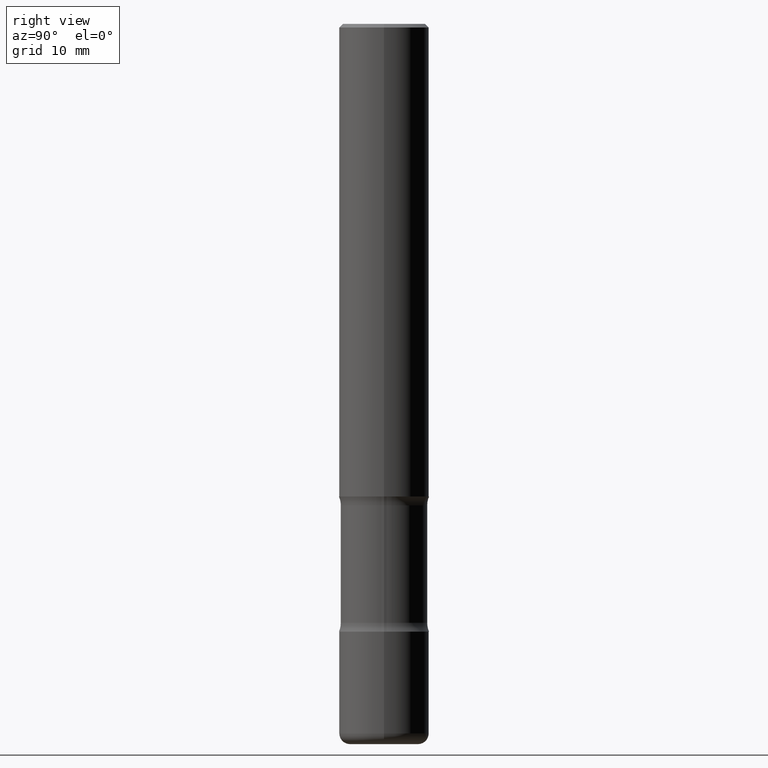
[diagram: clean part render]
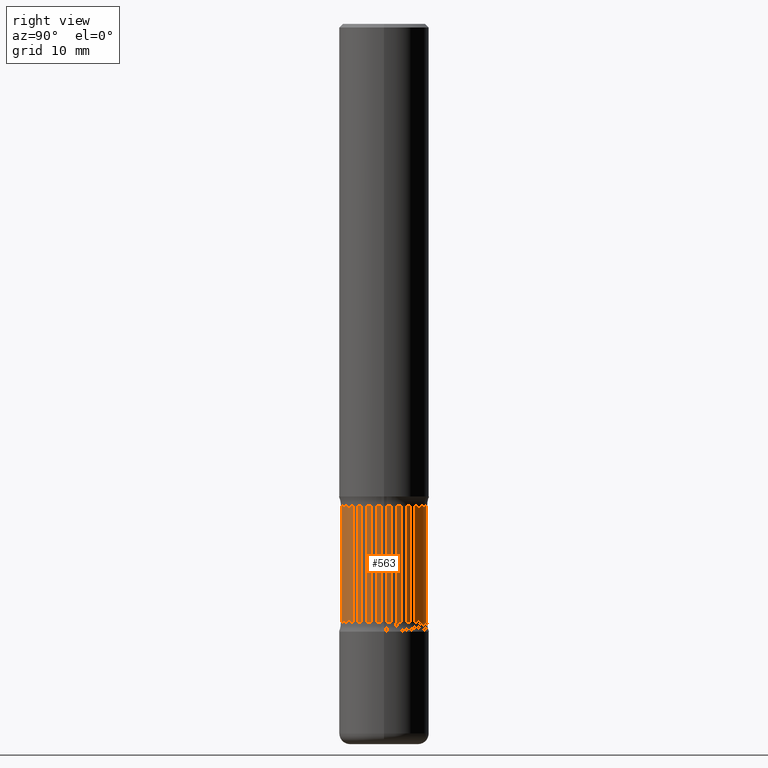
[diagram: same view with one face highlighted and labeled with its STEP entity id]
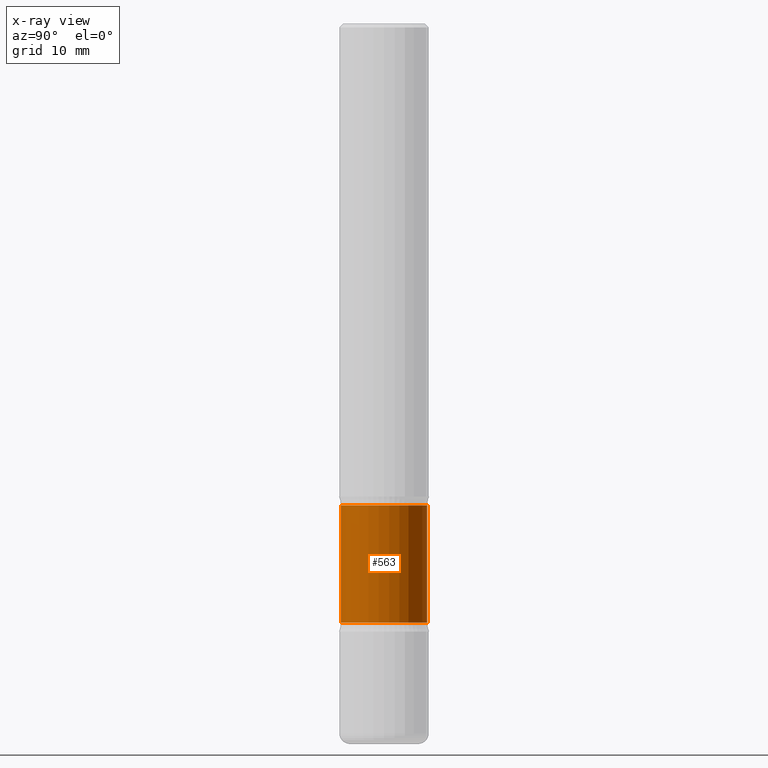
[diagram: x-ray of the same camera — body ghosted, the highlighted face saturated]
A machine part, right view. The second image highlights one B-rep face of the part: STEP entity #563.
The next image is the same camera in x-ray: the body ghosted, the highlighted face saturated — about 0% of this face is hidden behind the body in this view.
In plain terms, the highlighted cylindrical surface (partial cylindrical patch) has radius 6.096 mm, axis along (0, -0, -1).
Its self-contained STEP definition (entity closure, byte-faithful):
#8 = VERTEX_POINT ( 'NONE', #637 ) ;
#9 = CARTESIAN_POINT ( 'NONE',  ( 6.540663232779384843E-29, -9.334030794150637201E-15, -2.673989794855663682 ) ) ;
#12 = ORIENTED_EDGE ( 'NONE', *, *, #427, .T. ) ;
#57 = EDGE_LOOP ( 'NONE', ( #666, #12, #317, #520 ) ) ;
#117 = AXIS2_PLACEMENT_3D ( 'NONE', #123, #247, #634 ) ;
#123 = CARTESIAN_POINT ( 'NONE',  ( 9.766455520912181389E-29, -1.394771102909594036E-14, -3.994238073033861802 ) ) ;
#138 = CARTESIAN_POINT ( 'NONE',  ( 1.675911042644801198E-15, 0.2399999999999860023, -3.994238073033863134 ) ) ;
#148 = VERTEX_POINT ( 'NONE', #541 ) ;
#155 = CARTESIAN_POINT ( 'NONE',  ( 1.675911042644784829E-15, 0.2399999999999883615, -3.326010205144337206 ) ) ;
#174 = DIRECTION ( 'NONE',  ( 2.443322473091232126E-29, -3.494555009995310460E-15, -1.000000000000000000 ) ) ;
#178 = DIRECTION ( 'NONE',  ( 6.982962677686265922E-15, 1.000000000000000000, -4.553079989440440670E-15 ) ) ;
#195 = FACE_OUTER_BOUND ( 'NONE', #57, .T. ) ;
#199 = VECTOR ( 'NONE', #174, 39.37007874015748143 ) ;
#247 = DIRECTION ( 'NONE',  ( 2.443322473091231846E-29, -3.494555009995310460E-15, -1.000000000000000000 ) ) ;
#254 = CIRCLE ( 'NONE', #406, 0.2399999999999999634 ) ;
#301 = LINE ( 'NONE', #735, #199 ) ;
#308 = VECTOR ( 'NONE', #707, 39.37007874015748143 ) ;
#317 = ORIENTED_EDGE ( 'NONE', *, *, #639, .F. ) ;
#330 = CARTESIAN_POINT ( 'NONE',  ( -1.680822009453943183E-15, -0.2400000000000115652, -3.326010205144334986 ) ) ;
#406 = AXIS2_PLACEMENT_3D ( 'NONE', #752, #407, #647 ) ;
#407 = DIRECTION ( 'NONE',  ( 2.443322473091231846E-29, -3.494555009995310460E-15, -1.000000000000000000 ) ) ;
#410 = VERTEX_POINT ( 'NONE', #155 ) ;
#427 = EDGE_CURVE ( 'NONE', #148, #792, #301, .T. ) ;
#494 = EDGE_CURVE ( 'NONE', #8, #148, #612, .T. ) ;
#520 = ORIENTED_EDGE ( 'NONE', *, *, #805, .F. ) ;
#541 = CARTESIAN_POINT ( 'NONE',  ( -1.680822009453959749E-15, -0.2400000000000092337, -2.673989794855662794 ) ) ;
#563 = ADVANCED_FACE ( 'NONE', ( #195 ), #746, .T. ) ;
#572 = AXIS2_PLACEMENT_3D ( 'NONE', #9, #628, #178 ) ;
#612 = CIRCLE ( 'NONE', #572, 0.2399999999999999079 ) ;
#628 = DIRECTION ( 'NONE',  ( 2.443322473091231846E-29, -3.494555009995310460E-15, -1.000000000000000000 ) ) ;
#634 = DIRECTION ( 'NONE',  ( 6.982962677686265922E-15, 1.000000000000000000, -4.553079989440439881E-15 ) ) ;
#637 = CARTESIAN_POINT ( 'NONE',  ( 1.675911042644768658E-15, 0.2399999999999905820, -2.673989794855665014 ) ) ;
#639 = EDGE_CURVE ( 'NONE', #410, #792, #254, .T. ) ;
#647 = DIRECTION ( 'NONE',  ( 6.982962677686265922E-15, 1.000000000000000000, -4.553079989440439092E-15 ) ) ;
#666 = ORIENTED_EDGE ( 'NONE', *, *, #494, .T. ) ;
#704 = LINE ( 'NONE', #138, #308 ) ;
#707 = DIRECTION ( 'NONE',  ( 2.443322473091232126E-29, -3.494555009995310460E-15, -1.000000000000000000 ) ) ;
#735 = CARTESIAN_POINT ( 'NONE',  ( -1.646519519465069149E-15, -0.2400000000000138689, -3.994238073033860914 ) ) ;
#746 = CYLINDRICAL_SURFACE ( 'NONE', #117, 0.2399999999999999356 ) ;
#752 = CARTESIAN_POINT ( 'NONE',  ( 8.133759354151864072E-29, -1.161255198554411461E-14, -3.326010205144336318 ) ) ;
#792 = VERTEX_POINT ( 'NONE', #330 ) ;
#805 = EDGE_CURVE ( 'NONE', #8, #410, #704, .T. ) ;